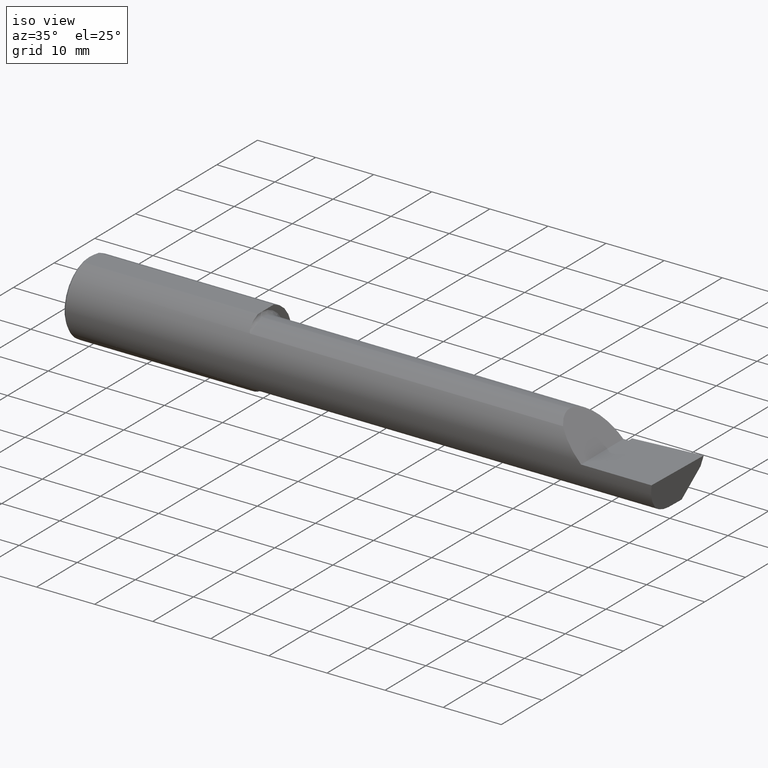
[diagram: clean part render]
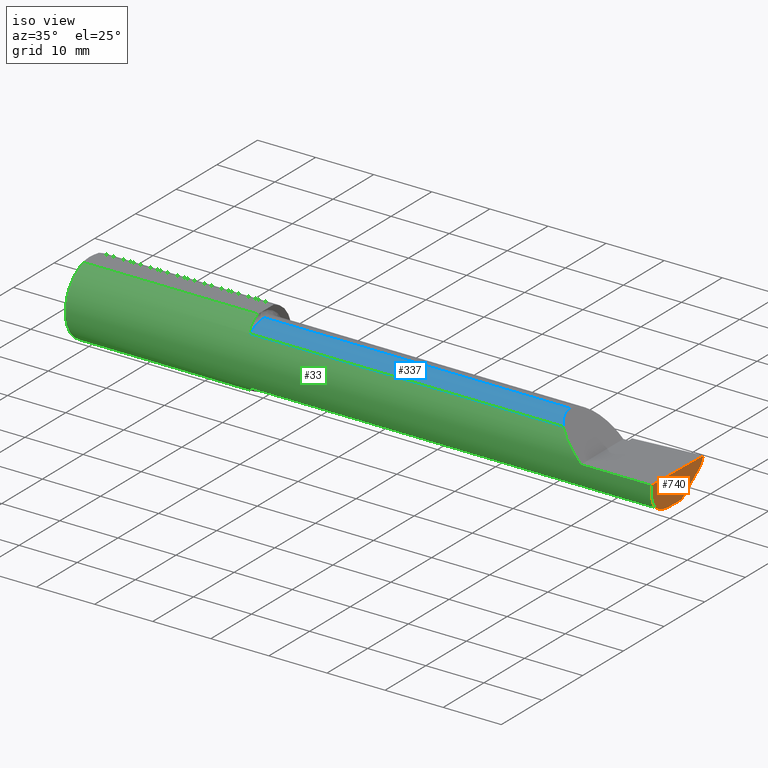
[diagram: same view with three faces highlighted in distinct colors, each labeled with its STEP entity id]
A machine part, iso view with three faces highlighted in distinct colors.
Their STEP definitions:

[orange] entity #740 — the highlighted planar face has unit normal (-0.9922, 0.026, 0.1219).
#9 = VERTEX_POINT ( 'NONE', #194 ) ;
#24 = FACE_OUTER_BOUND ( 'NONE', #658, .T. ) ;
#30 = VECTOR ( 'NONE', #628, 39.37007874015748854 ) ;
#41 = VERTEX_POINT ( 'NONE', #181 ) ;
#49 = CARTESIAN_POINT ( 'NONE',  ( 3.966195468375009359, -0.05299999999999998462, -0.2131499999999999229 ) ) ;
#56 = EDGE_CURVE ( 'NONE', #454, #534, #209, .T. ) ;
#70 = EDGE_CURVE ( 'NONE', #9, #239, #190, .T. ) ;
#81 = CARTESIAN_POINT ( 'NONE',  ( 3.987221270274238005, -0.2498499999999999888, -1.346590301211607078E-16 ) ) ;
#115 = AXIS2_PLACEMENT_3D ( 'NONE', #504, #560, #214 ) ;
#145 = PLANE ( 'NONE',  #115 ) ;
#166 = CARTESIAN_POINT ( 'NONE',  ( 3.983714411583733295, 0.1632262006094473417, -0.1166167083458063969 ) ) ;
#171 = ORIENTED_EDGE ( 'NONE', *, *, #540, .F. ) ;
#173 = CARTESIAN_POINT ( 'NONE',  ( 3.987221270274238005, -0.2498499999999999888, -1.346590301211607078E-16 ) ) ;
#181 = CARTESIAN_POINT ( 'NONE',  ( 3.968492717492762889, -0.1868028301886794917, -0.1659208399614086338 ) ) ;
#190 = LINE ( 'NONE', #166, #30 ) ;
#194 = CARTESIAN_POINT ( 'NONE',  ( 3.992127980275560262, 0.2189633278254523030, -0.06000000000000001166 ) ) ;
#209 = LINE ( 'NONE', #292, #499 ) ;
#214 = DIRECTION ( 'NONE',  ( 0.1219104985252742052, 0.0000000000000000000, 0.9925410975618687015 ) ) ;
#230 = CARTESIAN_POINT ( 'NONE',  ( 3.979623920331825104, -0.2498500000000000443, -0.06185424669427502103 ) ) ;
#237 = CARTESIAN_POINT ( 'NONE',  ( 3.966195468375009359, -0.05299999999999998462, -0.2131499999999999229 ) ) ;
#239 = VERTEX_POINT ( 'NONE', #525 ) ;
#244 = DIRECTION ( 'NONE',  ( -0.02617694830786740021, -0.9996573249755573709, 1.707029659308873255E-16 ) ) ;
#251 = ORIENTED_EDGE ( 'NONE', *, *, #520, .F. ) ;
#258 = VECTOR ( 'NONE', #420, 39.37007874015748143 ) ;
#289 = CARTESIAN_POINT ( 'NONE',  ( 3.991023571893940858, 0.2162715254282656929, -0.06841772571928599056 ) ) ;
#292 = CARTESIAN_POINT ( 'NONE',  ( 3.987226101480004559, -0.2496655036952227513, -1.346597502108384584E-16 ) ) ;
#293 = VERTEX_POINT ( 'NONE', #49 ) ;
#333 = ORIENTED_EDGE ( 'NONE', *, *, #70, .F. ) ;
#336 = EDGE_CURVE ( 'NONE', #41, #293, #709, .T. ) ;
#348 = CARTESIAN_POINT ( 'NONE',  ( 3.968492717492762889, -0.1868028301886794917, -0.1659208399614086338 ) ) ;
#410 = CARTESIAN_POINT ( 'NONE',  ( 3.968492717492762889, -0.1868028301886794917, -0.1659208399614086338 ) ) ;
#412 = LINE ( 'NONE', #289, #258 ) ;
#416 = CARTESIAN_POINT ( 'NONE',  ( 3.973097331270539989, -0.2278791102234774546, -0.1196748990301325921 ) ) ;
#419 = CARTESIAN_POINT ( 'NONE',  ( 3.966218632342874084, -0.05211540375603083280, -0.2131499999999999229 ) ) ;
#420 = DIRECTION ( 'NONE',  ( -0.1240019227989248018, -0.3022330132596638408, -0.9451342385281328307 ) ) ;
#429 = LINE ( 'NONE', #419, #573 ) ;
#454 = VERTEX_POINT ( 'NONE', #81 ) ;
#473 = ORIENTED_EDGE ( 'NONE', *, *, #336, .T. ) ;
#499 = VECTOR ( 'NONE', #639, 39.37007874015748143 ) ;
#504 = CARTESIAN_POINT ( 'NONE',  ( 3.963949576795525065, -0.1303119248116720585, -0.2149526021148594757 ) ) ;
#520 = EDGE_CURVE ( 'NONE', #534, #9, #412, .T. ) ;
#525 = CARTESIAN_POINT ( 'NONE',  ( 3.969369008890592632, 0.06819262280682632238, -0.2131499999999999506 ) ) ;
#527 = EDGE_CURVE ( 'NONE', #239, #293, #429, .T. ) ;
#529 = ORIENTED_EDGE ( 'NONE', *, *, #56, .F. ) ;
#534 = VERTEX_POINT ( 'NONE', #693 ) ;
#540 = EDGE_CURVE ( 'NONE', #41, #454, #655, .T. ) ;
#560 = DIRECTION ( 'NONE',  ( -0.9922060308645490601, 0.02598182930468765500, 0.1218693434051388302 ) ) ;
#573 = VECTOR ( 'NONE', #244, 39.37007874015748854 ) ;
#586 = CARTESIAN_POINT ( 'NONE',  ( 3.964907988924523785, -0.1021668565906570375, -0.2131500000000000061 ) ) ;
#628 = DIRECTION ( 'NONE',  ( -0.1053106618241713005, -0.6976485211320173629, -0.7086580314005225256 ) ) ;
#634 = ORIENTED_EDGE ( 'NONE', *, *, #527, .F. ) ;
#639 = DIRECTION ( 'NONE',  ( 0.02617694830786742102, 0.9996573249755573709, -3.901665791507040474E-18 ) ) ;
#655 =( BOUNDED_CURVE ( )  B_SPLINE_CURVE ( 3, ( #348, #416, #230, #173 ),
 .UNSPECIFIED., .F., .F. ) 
 B_SPLINE_CURVE_WITH_KNOTS ( ( 4, 4 ),
 ( 0.6344818218798794485, 1.360746882514760170 ),
 .UNSPECIFIED. ) 
 CURVE ( )  GEOMETRIC_REPRESENTATION_ITEM ( )  RATIONAL_B_SPLINE_CURVE ( ( 1.000000000000000000, 0.9565258159410998662, 0.9565258159410998662, 1.000000000000000000 ) ) 
 REPRESENTATION_ITEM ( '' )  );
#658 = EDGE_LOOP ( 'NONE', ( #473, #634, #333, #251, #529, #171 ) ) ;
#693 = CARTESIAN_POINT ( 'NONE',  ( 4.000000000000015099, 0.2381500000000413564, 1.299249831736763071E-13 ) ) ;
#709 =( BOUNDED_CURVE ( )  B_SPLINE_CURVE ( 3, ( #410, #764, #586, #237 ),
 .UNSPECIFIED., .F., .T. ) 
 B_SPLINE_CURVE_WITH_KNOTS ( ( 4, 4 ),
 ( 5.814587959757482771, 6.493234751459722176 ),
 .UNSPECIFIED. ) 
 CURVE ( )  GEOMETRIC_REPRESENTATION_ITEM ( )  RATIONAL_B_SPLINE_CURVE ( ( 1.000000000000000000, 0.9619867256453022986, 0.9619867256453022986, 1.000000000000000000 ) ) 
 REPRESENTATION_ITEM ( '' )  );
#740 = ADVANCED_FACE ( 'NONE', ( #24 ), #145, .F. ) ;
#764 = CARTESIAN_POINT ( 'NONE',  ( 3.965703997523711610, -0.1485302233682060380, -0.1967848538638757028 ) ) ;

[blue] entity #337 — the highlighted cylindrical surface (partial cylindrical patch) has radius 5.414 mm, axis along (-1, -0, -0).
#10 = CARTESIAN_POINT ( 'NONE',  ( 3.344079160038590626, -0.1868028301886808795, 0.1659208399614073015 ) ) ;
#14 = EDGE_CURVE ( 'NONE', #761, #616, #144, .T. ) ;
#20 = CARTESIAN_POINT ( 'NONE',  ( 0.0000000000000000000, -0.05299999999999998462, 0.2131499999999999506 ) ) ;
#34 = CARTESIAN_POINT ( 'NONE',  ( 1.225000000000000311, -0.1868028301886803799, 0.1659208399614076346 ) ) ;
#44 = CIRCLE ( 'NONE', #325, 0.2131499999999997563 ) ;
#53 = VERTEX_POINT ( 'NONE', #524 ) ;
#69 = CARTESIAN_POINT ( 'NONE',  ( 2.385000000000000231, -0.1868028301886794917, 0.1659208399614086338 ) ) ;
#111 = DIRECTION ( 'NONE',  ( 1.000000000000000000, 0.0000000000000000000, 0.0000000000000000000 ) ) ;
#123 = ORIENTED_EDGE ( 'NONE', *, *, #735, .T. ) ;
#141 = AXIS2_PLACEMENT_3D ( 'NONE', #456, #762, #690 ) ;
#144 = LINE ( 'NONE', #69, #433 ) ;
#155 = LINE ( 'NONE', #20, #601 ) ;
#261 = DIRECTION ( 'NONE',  ( -1.000000000000000000, -0.0000000000000000000, -0.0000000000000000000 ) ) ;
#317 = CYLINDRICAL_SURFACE ( 'NONE', #141, 0.2131499999999999506 ) ;
#325 = AXIS2_PLACEMENT_3D ( 'NONE', #608, #261, #670 ) ;
#337 = ADVANCED_FACE ( 'NONE', ( #339 ), #317, .T. ) ;
#339 = FACE_OUTER_BOUND ( 'NONE', #737, .T. ) ;
#357 = ORIENTED_EDGE ( 'NONE', *, *, #664, .F. ) ;
#368 = CARTESIAN_POINT ( 'NONE',  ( 1.225000000000000311, -0.05299999999999998462, 0.2131499999999997563 ) ) ;
#384 = CARTESIAN_POINT ( 'NONE',  ( 3.296849999999997394, -0.05299999999999998462, 0.2131499999999999506 ) ) ;
#433 = VECTOR ( 'NONE', #111, 39.37007874015748143 ) ;
#456 = CARTESIAN_POINT ( 'NONE',  ( 0.0000000000000000000, -0.05299999999999998462, 0.0000000000000000000 ) ) ;
#476 = EDGE_CURVE ( 'NONE', #53, #621, #155, .T. ) ;
#481 = ORIENTED_EDGE ( 'NONE', *, *, #476, .T. ) ;
#497 = DIRECTION ( 'NONE',  ( -1.000000000000000000, -0.0000000000000000000, -0.0000000000000000000 ) ) ;
#524 = CARTESIAN_POINT ( 'NONE',  ( 3.296849999999997394, -0.05299999999999998462, 0.2131499999999999506 ) ) ;
#557 = CARTESIAN_POINT ( 'NONE',  ( 3.344079160038590626, -0.1868028301886808795, 0.1659208399614073015 ) ) ;
#578 =( BOUNDED_CURVE ( )  B_SPLINE_CURVE ( 3, ( #557, #617, #729, #384 ),
 .UNSPECIFIED., .F., .F. ) 
 B_SPLINE_CURVE_WITH_KNOTS ( ( 4, 4 ),
 ( 5.604538515477337945, 6.283185307179586232 ),
 .UNSPECIFIED. ) 
 CURVE ( )  GEOMETRIC_REPRESENTATION_ITEM ( )  RATIONAL_B_SPLINE_CURVE ( ( 1.000000000000000000, 0.9619867256453012994, 0.9619867256453012994, 1.000000000000000000 ) ) 
 REPRESENTATION_ITEM ( '' )  );
#601 = VECTOR ( 'NONE', #497, 39.37007874015748143 ) ;
#608 = CARTESIAN_POINT ( 'NONE',  ( 1.225000000000000311, -0.05299999999999998462, 0.0000000000000000000 ) ) ;
#616 = VERTEX_POINT ( 'NONE', #10 ) ;
#617 = CARTESIAN_POINT ( 'NONE',  ( 3.313215146136122335, -0.1485302233682071760, 0.1967848538638751477 ) ) ;
#621 = VERTEX_POINT ( 'NONE', #368 ) ;
#652 = ORIENTED_EDGE ( 'NONE', *, *, #14, .T. ) ;
#664 = EDGE_CURVE ( 'NONE', #761, #621, #44, .T. ) ;
#670 = DIRECTION ( 'NONE',  ( 0.0000000000000000000, 0.0000000000000000000, 1.000000000000000000 ) ) ;
#690 = DIRECTION ( 'NONE',  ( 0.0000000000000000000, 0.0000000000000000000, 1.000000000000000000 ) ) ;
#729 = CARTESIAN_POINT ( 'NONE',  ( 3.296849999999996061, -0.1021668565906576620, 0.2131499999999999229 ) ) ;
#735 = EDGE_CURVE ( 'NONE', #616, #53, #578, .T. ) ;
#737 = EDGE_LOOP ( 'NONE', ( #123, #481, #357, #652 ) ) ;
#761 = VERTEX_POINT ( 'NONE', #34 ) ;
#762 = DIRECTION ( 'NONE',  ( -1.000000000000000000, -0.0000000000000000000, -0.0000000000000000000 ) ) ;

[green] entity #33 — the highlighted cylindrical surface (partial cylindrical patch) has radius 6.3462 mm, axis along (-1, -0, -0).
#10 = CARTESIAN_POINT ( 'NONE',  ( 3.344079160038590626, -0.1868028301886808795, 0.1659208399614073015 ) ) ;
#11 = EDGE_CURVE ( 'NONE', #76, #616, #684, .T. ) ;
#14 = EDGE_CURVE ( 'NONE', #761, #616, #144, .T. ) ;
#18 = CARTESIAN_POINT ( 'NONE',  ( 7.089685198749692867E-32, -0.2498499999999999610, 4.685946446163635703E-16 ) ) ;
#25 = CARTESIAN_POINT ( 'NONE',  ( 1.200332084145229627, -0.1014027185340456438, 0.2286231260779308383 ) ) ;
#27 = ORIENTED_EDGE ( 'NONE', *, *, #61, .F. ) ;
#29 = CARTESIAN_POINT ( 'NONE',  ( 1.225000000000000311, -0.1868028301886803799, 0.1659208399614076346 ) ) ;
#31 = DIRECTION ( 'NONE',  ( 0.0000000000000000000, 0.0000000000000000000, -1.000000000000000000 ) ) ;
#33 = ADVANCED_FACE ( 'NONE', ( #592 ), #52, .T. ) ;
#34 = CARTESIAN_POINT ( 'NONE',  ( 1.225000000000000311, -0.1868028301886803799, 0.1659208399614076346 ) ) ;
#39 = VECTOR ( 'NONE', #379, 39.37007874015748143 ) ;
#41 = VERTEX_POINT ( 'NONE', #181 ) ;
#45 = AXIS2_PLACEMENT_3D ( 'NONE', #170, #175, #117 ) ;
#46 = ORIENTED_EDGE ( 'NONE', *, *, #374, .F. ) ;
#47 = CARTESIAN_POINT ( 'NONE',  ( 3.390325100969866945, -0.2278791102234780930, 0.1196748990301311488 ) ) ;
#52 = CYLINDRICAL_SURFACE ( 'NONE', #45, 0.2498499999999999888 ) ;
#60 = CARTESIAN_POINT ( 'NONE',  ( 3.448145753305724259, -0.2498500000000001275, 0.06185424669427388999 ) ) ;
#61 = EDGE_CURVE ( 'NONE', #63, #146, #366, .T. ) ;
#63 = VERTEX_POINT ( 'NONE', #519 ) ;
#65 = LINE ( 'NONE', #18, #654 ) ;
#69 = CARTESIAN_POINT ( 'NONE',  ( 2.385000000000000231, -0.1868028301886794917, 0.1659208399614086338 ) ) ;
#74 = CARTESIAN_POINT ( 'NONE',  ( 0.01499999999999999771, 0.0000000000000000000, 0.0000000000000000000 ) ) ;
#76 = VERTEX_POINT ( 'NONE', #395 ) ;
#81 = CARTESIAN_POINT ( 'NONE',  ( 3.987221270274238005, -0.2498499999999999888, -1.346590301211607078E-16 ) ) ;
#88 = AXIS2_PLACEMENT_3D ( 'NONE', #74, #485, #135 ) ;
#90 = CARTESIAN_POINT ( 'NONE',  ( 1.202700302592143222, -0.1312404656039936057, 0.2128935242986059462 ) ) ;
#93 = CARTESIAN_POINT ( 'NONE',  ( 1.200000000000000400, 0.0000000000000000000, 0.0000000000000000000 ) ) ;
#104 = ORIENTED_EDGE ( 'NONE', *, *, #540, .T. ) ;
#111 = DIRECTION ( 'NONE',  ( 1.000000000000000000, 0.0000000000000000000, 0.0000000000000000000 ) ) ;
#117 = DIRECTION ( 'NONE',  ( 0.0000000000000000000, 0.0000000000000000000, 1.000000000000000000 ) ) ;
#126 = DIRECTION ( 'NONE',  ( -1.000000000000000000, -0.0000000000000000000, -0.0000000000000000000 ) ) ;
#135 = DIRECTION ( 'NONE',  ( 0.0000000000000000000, 0.0000000000000000000, 1.000000000000000000 ) ) ;
#144 = LINE ( 'NONE', #69, #433 ) ;
#146 = VERTEX_POINT ( 'NONE', #442 ) ;
#147 = CARTESIAN_POINT ( 'NONE',  ( 1.207343635746627619, -0.1582230848692706693, 0.1936715022401941932 ) ) ;
#148 = EDGE_CURVE ( 'NONE', #228, #541, #312, .T. ) ;
#150 = DIRECTION ( 'NONE',  ( 1.000000000000000000, 0.0000000000000000000, 0.0000000000000000000 ) ) ;
#170 = CARTESIAN_POINT ( 'NONE',  ( 0.0000000000000000000, 0.0000000000000000000, 0.0000000000000000000 ) ) ;
#173 = CARTESIAN_POINT ( 'NONE',  ( 3.987221270274238005, -0.2498499999999999888, -1.346590301211607078E-16 ) ) ;
#175 = DIRECTION ( 'NONE',  ( -1.000000000000000000, -0.0000000000000000000, -0.0000000000000000000 ) ) ;
#181 = CARTESIAN_POINT ( 'NONE',  ( 3.968492717492762889, -0.1868028301886794917, -0.1659208399614086338 ) ) ;
#187 = EDGE_LOOP ( 'NONE', ( #568, #104, #451, #687, #457, #543, #27, #472, #759, #539, #225, #298, #46 ) ) ;
#188 = CARTESIAN_POINT ( 'NONE',  ( 3.344079160038590626, -0.1868028301886808795, 0.1659208399614073015 ) ) ;
#208 = CARTESIAN_POINT ( 'NONE',  ( 1.212758562425230391, -0.1743135686468876011, 0.1790760091940032661 ) ) ;
#212 = CARTESIAN_POINT ( 'NONE',  ( 1.205537042546467541, -0.1495003888704997952, -0.2004994225712666833 ) ) ;
#224 = CARTESIAN_POINT ( 'NONE',  ( 1.200000000000000400, -0.08036415094339748044, -0.2365726648265746579 ) ) ;
#225 = ORIENTED_EDGE ( 'NONE', *, *, #754, .T. ) ;
#228 = VERTEX_POINT ( 'NONE', #465 ) ;
#230 = CARTESIAN_POINT ( 'NONE',  ( 3.979623920331825104, -0.2498500000000000443, -0.06185424669427502103 ) ) ;
#236 = CARTESIAN_POINT ( 'NONE',  ( 3.509999999999999787, -0.2498499999999999610, -6.245698675651499853E-17 ) ) ;
#264 = CARTESIAN_POINT ( 'NONE',  ( 1.199999999999990408, -0.1016924291521898588, -0.2293274111511737212 ) ) ;
#265 = CARTESIAN_POINT ( 'NONE',  ( 1.217018584423772198, -0.1817363555988625867, 0.1714722504633794109 ) ) ;
#269 = CARTESIAN_POINT ( 'NONE',  ( 1.201227564404961923, -0.1217005943024309367, -0.2193523119135129817 ) ) ;
#273 = VERTEX_POINT ( 'NONE', #455 ) ;
#280 = CARTESIAN_POINT ( 'NONE',  ( 1.225000000000000311, -0.1868028301886804077, -0.1659208399614076346 ) ) ;
#282 = CIRCLE ( 'NONE', #609, 0.2498499999999999888 ) ;
#286 = CARTESIAN_POINT ( 'NONE',  ( 1.215875558094660080, -0.1799506819598050422, -0.1733486322212168529 ) ) ;
#288 = CARTESIAN_POINT ( 'NONE',  ( 1.220138573936400350, -0.1849738682364339692, -0.1679602226613240989 ) ) ;
#290 = AXIS2_PLACEMENT_3D ( 'NONE', #93, #439, #31 ) ;
#298 = ORIENTED_EDGE ( 'NONE', *, *, #148, .F. ) ;
#306 = VECTOR ( 'NONE', #385, 39.37007874015748143 ) ;
#309 = CARTESIAN_POINT ( 'NONE',  ( 1.200000000000000400, 0.07650098038587482829, 0.2378500000000000059 ) ) ;
#312 = CIRCLE ( 'NONE', #290, 0.2498499999999999888 ) ;
#329 = CARTESIAN_POINT ( 'NONE',  ( 1.220144309637441582, -0.1849788583324342151, 0.1679547276881058204 ) ) ;
#330 = CARTESIAN_POINT ( 'NONE',  ( 1.207341173198634765, -0.1582250006961569977, -0.1936724403215118184 ) ) ;
#338 = DIRECTION ( 'NONE',  ( 1.000000000000000000, 0.0000000000000000000, 0.0000000000000000000 ) ) ;
#342 = CARTESIAN_POINT ( 'NONE',  ( 1.217016733372314308, -0.1817333077058778390, -0.1714754572696053081 ) ) ;
#348 = CARTESIAN_POINT ( 'NONE',  ( 3.968492717492762889, -0.1868028301886794917, -0.1659208399614086338 ) ) ;
#366 = CIRCLE ( 'NONE', #653, 0.2498499999999999888 ) ;
#374 = EDGE_CURVE ( 'NONE', #422, #228, #756, .T. ) ;
#375 = DIRECTION ( 'NONE',  ( -1.000000000000000000, -0.0000000000000000000, -0.0000000000000000000 ) ) ;
#379 = DIRECTION ( 'NONE',  ( -1.000000000000000000, -0.0000000000000000000, -0.0000000000000000000 ) ) ;
#381 = CARTESIAN_POINT ( 'NONE',  ( 1.223548866468136431, -0.1868028301907328215, 0.1659208399590971217 ) ) ;
#383 = EDGE_CURVE ( 'NONE', #41, #422, #765, .T. ) ;
#385 = DIRECTION ( 'NONE',  ( -1.000000000000000000, -0.0000000000000000000, -0.0000000000000000000 ) ) ;
#395 = CARTESIAN_POINT ( 'NONE',  ( 3.509999999999999787, -0.2498499999999999610, -6.245698675651499853E-17 ) ) ;
#416 = CARTESIAN_POINT ( 'NONE',  ( 3.973097331270539989, -0.2278791102234774546, -0.1196748990301325921 ) ) ;
#422 = VERTEX_POINT ( 'NONE', #280 ) ;
#426 = LINE ( 'NONE', #459, #306 ) ;
#433 = VECTOR ( 'NONE', #111, 39.37007874015748143 ) ;
#436 = EDGE_CURVE ( 'NONE', #63, #273, #426, .T. ) ;
#437 = CARTESIAN_POINT ( 'NONE',  ( 1.201680550596499586, -0.1214972057705739766, 0.2186080375779516638 ) ) ;
#439 = DIRECTION ( 'NONE',  ( 1.000000000000000000, 0.0000000000000000000, 0.0000000000000000000 ) ) ;
#442 = CARTESIAN_POINT ( 'NONE',  ( 1.200000000000000400, -0.08036415094339748044, 0.2365726648265746579 ) ) ;
#451 = ORIENTED_EDGE ( 'NONE', *, *, #661, .T. ) ;
#454 = VERTEX_POINT ( 'NONE', #81 ) ;
#455 = CARTESIAN_POINT ( 'NONE',  ( 0.01499999999998191669, -0.07650098038590480432, 0.2378500000000000059 ) ) ;
#457 = ORIENTED_EDGE ( 'NONE', *, *, #14, .F. ) ;
#459 = CARTESIAN_POINT ( 'NONE',  ( 0.0000000000000000000, -0.07650098038587477278, 0.2378500000000000059 ) ) ;
#465 = CARTESIAN_POINT ( 'NONE',  ( 1.200000000000000400, -0.08036415094339748044, -0.2365726648265746579 ) ) ;
#471 = CARTESIAN_POINT ( 'NONE',  ( 1.225000000000000311, -0.1868028301886804077, -0.1659208399614076346 ) ) ;
#472 = ORIENTED_EDGE ( 'NONE', *, *, #436, .T. ) ;
#479 = CARTESIAN_POINT ( 'NONE',  ( 0.01499999999999999771, 0.0000000000000000000, 0.0000000000000000000 ) ) ;
#485 = DIRECTION ( 'NONE',  ( -1.000000000000000000, -0.0000000000000000000, -0.0000000000000000000 ) ) ;
#498 = CARTESIAN_POINT ( 'NONE',  ( 1.205553274544309605, -0.1495649063853957961, 0.2004446339470376537 ) ) ;
#514 = CARTESIAN_POINT ( 'NONE',  ( 1.211285743882608346, -0.1704402150608126942, -0.1827701868778686956 ) ) ;
#518 = VERTEX_POINT ( 'NONE', #647 ) ;
#519 = CARTESIAN_POINT ( 'NONE',  ( 1.200000000000000400, -0.07650098038590487370, 0.2378500000000000059 ) ) ;
#535 = DIRECTION ( 'NONE',  ( 0.0000000000000000000, 0.0000000000000000000, 1.000000000000000000 ) ) ;
#538 = CARTESIAN_POINT ( 'NONE',  ( 0.01499999999999999771, 0.07650098038587481442, 0.2378500000000000059 ) ) ;
#539 = ORIENTED_EDGE ( 'NONE', *, *, #553, .F. ) ;
#540 = EDGE_CURVE ( 'NONE', #41, #454, #655, .T. ) ;
#541 = VERTEX_POINT ( 'NONE', #309 ) ;
#543 = ORIENTED_EDGE ( 'NONE', *, *, #706, .F. ) ;
#553 = EDGE_CURVE ( 'NONE', #585, #518, #282, .T. ) ;
#554 = CARTESIAN_POINT ( 'NONE',  ( 1.211268146151109670, -0.1703904609315289032, 0.1828159088808235522 ) ) ;
#568 = ORIENTED_EDGE ( 'NONE', *, *, #383, .F. ) ;
#585 = VERTEX_POINT ( 'NONE', #538 ) ;
#591 = CARTESIAN_POINT ( 'NONE',  ( 1.223547768521294321, -0.1868028301886803799, -0.1659208399614076623 ) ) ;
#592 = FACE_OUTER_BOUND ( 'NONE', #187, .T. ) ;
#593 = EDGE_CURVE ( 'NONE', #518, #273, #689, .T. ) ;
#609 = AXIS2_PLACEMENT_3D ( 'NONE', #479, #126, #535 ) ;
#613 = LINE ( 'NONE', #623, #751 ) ;
#615 = CARTESIAN_POINT ( 'NONE',  ( 1.215857071685141566, -0.1799228808997989093, 0.1733778622677440429 ) ) ;
#616 = VERTEX_POINT ( 'NONE', #10 ) ;
#623 = CARTESIAN_POINT ( 'NONE',  ( 0.0000000000000000000, 0.07650098038587481442, 0.2378500000000000059 ) ) ;
#632 = CARTESIAN_POINT ( 'NONE',  ( 1.222232603162240805, -0.1862758070845885183, -0.1665151405181414246 ) ) ;
#636 = CARTESIAN_POINT ( 'NONE',  ( 2.385000000000000231, -0.1868028301886794917, -0.1659208399614086338 ) ) ;
#647 = CARTESIAN_POINT ( 'NONE',  ( 0.01499999999999999771, 0.0000000000000000000, -0.2498499999999999888 ) ) ;
#653 = AXIS2_PLACEMENT_3D ( 'NONE', #741, #338, #683 ) ;
#654 = VECTOR ( 'NONE', #375, 39.37007874015748143 ) ;
#655 =( BOUNDED_CURVE ( )  B_SPLINE_CURVE ( 3, ( #348, #416, #230, #173 ),
 .UNSPECIFIED., .F., .F. ) 
 B_SPLINE_CURVE_WITH_KNOTS ( ( 4, 4 ),
 ( 0.6344818218798794485, 1.360746882514760170 ),
 .UNSPECIFIED. ) 
 CURVE ( )  GEOMETRIC_REPRESENTATION_ITEM ( )  RATIONAL_B_SPLINE_CURVE ( ( 1.000000000000000000, 0.9565258159410998662, 0.9565258159410998662, 1.000000000000000000 ) ) 
 REPRESENTATION_ITEM ( '' )  );
#661 = EDGE_CURVE ( 'NONE', #454, #76, #65, .T. ) ;
#672 = CARTESIAN_POINT ( 'NONE',  ( 1.200000000000000400, -0.09104204635388273015, 0.2329453649474652333 ) ) ;
#675 = CARTESIAN_POINT ( 'NONE',  ( 1.219290397284158889, -0.1841927918507060002, 0.1688179232533546237 ) ) ;
#683 = DIRECTION ( 'NONE',  ( 0.0000000000000000000, 0.0000000000000000000, -1.000000000000000000 ) ) ;
#684 =( BOUNDED_CURVE ( )  B_SPLINE_CURVE ( 3, ( #236, #60, #47, #188 ),
 .UNSPECIFIED., .F., .T. ) 
 B_SPLINE_CURVE_WITH_KNOTS ( ( 4, 4 ),
 ( 4.712388980384687898, 5.438654041019563401 ),
 .UNSPECIFIED. ) 
 CURVE ( )  GEOMETRIC_REPRESENTATION_ITEM ( )  RATIONAL_B_SPLINE_CURVE ( ( 1.000000000000000000, 0.9565258159411005323, 0.9565258159411005323, 1.000000000000000000 ) ) 
 REPRESENTATION_ITEM ( '' )  );
#687 = ORIENTED_EDGE ( 'NONE', *, *, #11, .T. ) ;
#688 = CARTESIAN_POINT ( 'NONE',  ( 1.212797058507745440, -0.1743943839926598849, -0.1789958554125687107 ) ) ;
#689 = CIRCLE ( 'NONE', #88, 0.2498499999999999888 ) ;
#692 = CARTESIAN_POINT ( 'NONE',  ( 1.219285582744839669, -0.1841881072713818512, -0.1688230283719339697 ) ) ;
#695 = B_SPLINE_CURVE_WITH_KNOTS ( 'NONE', 3,
 ( #725, #672, #25, #437, #90, #498, #147, #554, #208, #615, #265, #675, #329, #727, #381, #29 ),
 .UNSPECIFIED., .F., .F.,
 ( 4, 2, 2, 2, 2, 2, 2, 4 ),
 ( 0.0001034694911878371434, 0.0009591263138367673701, 0.001814783136485697461, 0.002670439959134626468, 0.003098268370459092164, 0.003312182576121323278, 0.003419139678952436666, 0.003526096781783550054 ),
 .UNSPECIFIED. ) ;
#706 = EDGE_CURVE ( 'NONE', #146, #761, #695, .T. ) ;
#725 = CARTESIAN_POINT ( 'NONE',  ( 1.200000000000000400, -0.08036415094339748044, 0.2365726648265746579 ) ) ;
#727 = CARTESIAN_POINT ( 'NONE',  ( 1.222243150415551760, -0.1862809296394756786, 0.1665094106511978145 ) ) ;
#741 = CARTESIAN_POINT ( 'NONE',  ( 1.200000000000000400, 0.0000000000000000000, 0.0000000000000000000 ) ) ;
#751 = VECTOR ( 'NONE', #150, 39.37007874015748143 ) ;
#754 = EDGE_CURVE ( 'NONE', #585, #541, #613, .T. ) ;
#756 = B_SPLINE_CURVE_WITH_KNOTS ( 'NONE', 3,
 ( #471, #591, #632, #288, #692, #342, #286, #688, #514, #330, #212, #269, #264, #224 ),
 .UNSPECIFIED., .F., .F.,
 ( 4, 2, 2, 2, 2, 2, 4 ),
 ( 1.967619685253095994E-07, 0.0001090840123077906792, 0.0002179712626470560314, 0.0004357457633255811522, 0.0008712947646826259187, 0.001742392767396717945, 0.003484588772824900697 ),
 .UNSPECIFIED. ) ;
#759 = ORIENTED_EDGE ( 'NONE', *, *, #593, .F. ) ;
#761 = VERTEX_POINT ( 'NONE', #34 ) ;
#765 = LINE ( 'NONE', #636, #39 ) ;